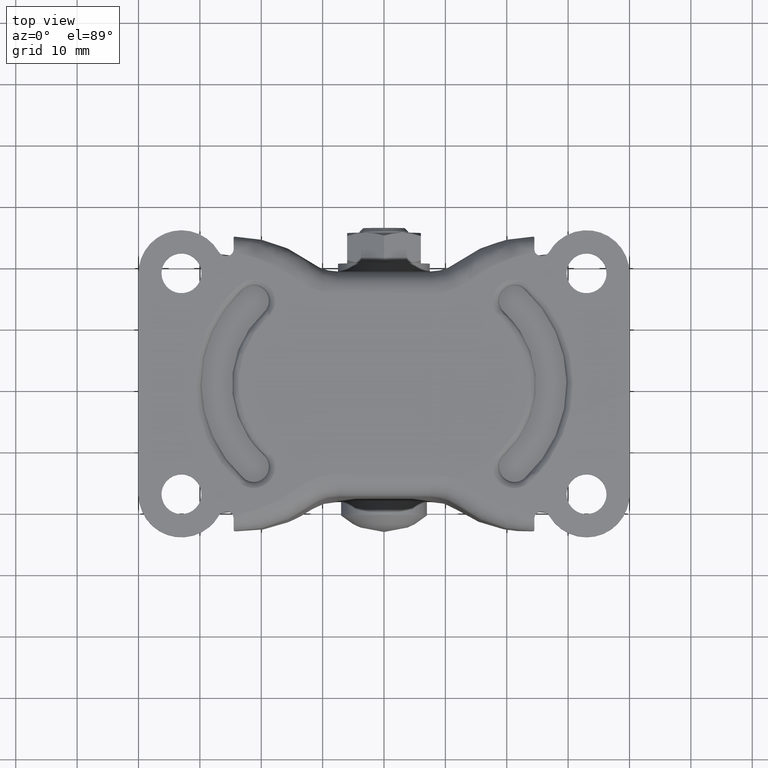
[diagram: clean part render]
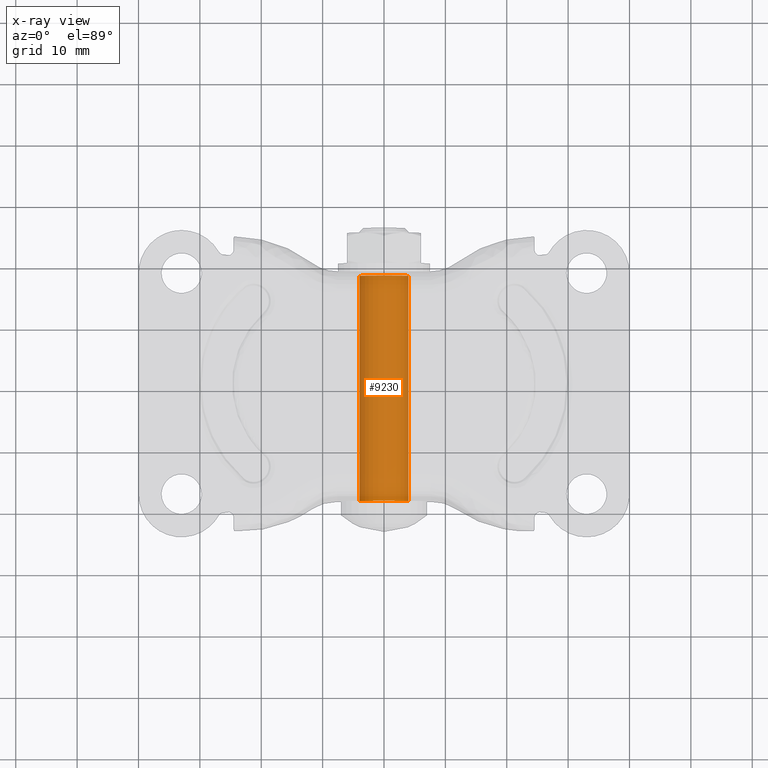
[diagram: x-ray — body ghosted, one internal face saturated and labeled with its STEP entity id]
A machine part, top view, then the same camera in x-ray: the body is ghosted and one INTERNAL B-rep face — a face not visible from any outside direction — is saturated and labeled: STEP entity #9230.
In plain terms, the highlighted face is a freeform B-spline surface patch.
Its self-contained STEP definition (entity closure, byte-faithful):
#9128=CARTESIAN_POINT('',(3.972038105454473,19.267500000000005,-47.472136938627017));
#9129=CARTESIAN_POINT('',(3.985550461794228,19.267500000000009,-47.358458914551903));
#9130=CARTESIAN_POINT('',(3.992539193687272,19.267500000000009,-47.244194158139422));
#9131=CARTESIAN_POINT('',(4.236733351826688,19.267500000000005,-43.251654964452150));
#9132=CARTESIAN_POINT('',(0.244194158139416,19.267500000000009,-43.007460806312729));
#9133=CARTESIAN_POINT('',(-3.748345035547856,19.267500000000005,-42.763266648173321));
#9134=CARTESIAN_POINT('',(-3.992539193687272,19.267500000000009,-46.755805841860592));
#9135=CARTESIAN_POINT('',(3.972038105454473,-19.290437500000007,-47.472136938627017));
#9136=CARTESIAN_POINT('',(3.985550461794228,-19.290437499999999,-47.358458914551903));
#9137=CARTESIAN_POINT('',(3.992539193687272,-19.290437499999999,-47.244194158139422));
#9138=CARTESIAN_POINT('',(4.236733351826688,-19.290437499999999,-43.251654964452150));
#9139=CARTESIAN_POINT('',(0.244194158139416,-19.290437499999999,-43.007460806312729));
#9140=CARTESIAN_POINT('',(-3.748345035547856,-19.290437499999999,-42.763266648173321));
#9141=CARTESIAN_POINT('',(-3.992539193687272,-19.290437499999999,-46.755805841860592));
#9149=(BOUNDED_SURFACE()B_SPLINE_SURFACE(2,1,((#9128,#9135),(#9129,#9136),(#9130,#9137),(#9131,#9138),(#9132,#9139),(#9133,#9140),(#9134,#9141)),.UNSPECIFIED.,.F.,.F.,.U.)B_SPLINE_SURFACE_WITH_KNOTS((3,2,2,3),(2,2),(0.0,0.265096679918768,6.892513677887965,13.519930675857159),(0.0,38.557937500000008),.UNSPECIFIED.)GEOMETRIC_REPRESENTATION_ITEM()RATIONAL_B_SPLINE_SURFACE(((0.977505800795127,0.977505800795127),(0.988284271247462,0.988284271247462),(1.0,1.0),(0.707106781186548,0.707106781186548),(1.0,1.0),(0.707106781186548,0.707106781186548),(1.0,1.0)))REPRESENTATION_ITEM('')SURFACE());
#9150=CARTESIAN_POINT('',(3.972038105450744,-18.350000000000001,-47.472136938658373));
#9151=VERTEX_POINT('',#9150);
#9152=CARTESIAN_POINT('',(0.0,-18.350000000000001,-43.000000000000199));
#9153=VERTEX_POINT('',#9152);
#9154=CARTESIAN_POINT('',(3.972038105450743,-18.350000000000001,-47.472136938658366));
#9155=CARTESIAN_POINT('',(3.999999999999806,-18.349999999999994,-47.236896478639331));
#9156=CARTESIAN_POINT('',(3.999999999999805,-18.350000000000001,-47.0));
#9157=CARTESIAN_POINT('',(3.999999999999806,-18.350000000000001,-43.000000000000206));
#9158=CARTESIAN_POINT('',(0.0,-18.350000000000001,-43.000000000000199));
#9166=(BOUNDED_CURVE()B_SPLINE_CURVE(2,(#9154,#9155,#9156,#9157,#9158),.UNSPECIFIED.,.F.,.U.)B_SPLINE_CURVE_WITH_KNOTS((3,2,3),(0.229562473512975,0.250000000000000,0.500000000000000),.UNSPECIFIED.)CURVE()GEOMETRIC_REPRESENTATION_ITEM()RATIONAL_B_SPLINE_CURVE((0.956026754182654,0.976055948330520,1.0,0.707106781186548,1.0))REPRESENTATION_ITEM(''));
#9167=EDGE_CURVE('',#9151,#9153,#9166,.T.);
#9168=ORIENTED_EDGE('',*,*,#9167,.F.);
#9169=CARTESIAN_POINT('',(3.972038105450744,18.350000000000001,-47.472136938658373));
#9170=VERTEX_POINT('',#9169);
#9171=CARTESIAN_POINT('',(3.972038105450744,18.350000000000001,-47.472136938658373));
#9172=CARTESIAN_POINT('',(3.972038105450744,-18.350000000000001,-47.472136938658373));
#9173=QUASI_UNIFORM_CURVE('',1,(#9171,#9172),.UNSPECIFIED.,.F.,.U.);
#9174=EDGE_CURVE('',#9170,#9151,#9173,.T.);
#9175=ORIENTED_EDGE('',*,*,#9174,.F.);
#9176=CARTESIAN_POINT('',(0.0,18.350000000000001,-43.000000000000199));
#9177=VERTEX_POINT('',#9176);
#9178=CARTESIAN_POINT('',(3.972038105450744,18.350000000000001,-47.472136938658373));
#9179=CARTESIAN_POINT('',(3.999999999999806,18.350000000000005,-47.236896478639331));
#9180=CARTESIAN_POINT('',(3.999999999999805,18.350000000000001,-47.0));
#9181=CARTESIAN_POINT('',(3.999999999999806,18.350000000000001,-43.000000000000206));
#9182=CARTESIAN_POINT('',(0.0,18.350000000000001,-43.000000000000199));
#9190=(BOUNDED_CURVE()B_SPLINE_CURVE(2,(#9178,#9179,#9180,#9181,#9182),.UNSPECIFIED.,.F.,.U.)B_SPLINE_CURVE_WITH_KNOTS((3,2,3),(0.229562473512975,0.250000000000000,0.500000000000000),.UNSPECIFIED.)CURVE()GEOMETRIC_REPRESENTATION_ITEM()RATIONAL_B_SPLINE_CURVE((0.956026754182654,0.976055948330520,1.0,0.707106781186548,1.0))REPRESENTATION_ITEM(''));
#9191=EDGE_CURVE('',#9170,#9177,#9190,.T.);
#9192=ORIENTED_EDGE('',*,*,#9191,.T.);
#9193=CARTESIAN_POINT('',(-3.992539193674548,18.350000000000001,-46.755805841652531));
#9194=VERTEX_POINT('',#9193);
#9195=CARTESIAN_POINT('',(0.0,18.350000000000001,-43.000000000000199));
#9196=CARTESIAN_POINT('',(-3.762824267229712,18.349999999999998,-43.000000000000199));
#9197=CARTESIAN_POINT('',(-3.992539193674548,18.350000000000001,-46.755805841652531));
#9205=(BOUNDED_CURVE()B_SPLINE_CURVE(2,(#9195,#9196,#9197),.UNSPECIFIED.,.F.,.U.)B_SPLINE_CURVE_WITH_KNOTS((3,3),(0.500000000000000,0.739332962223986),.UNSPECIFIED.)CURVE()GEOMETRIC_REPRESENTATION_ITEM()RATIONAL_B_SPLINE_CURVE((1.0,0.719603993304233,0.976072041634662))REPRESENTATION_ITEM(''));
#9206=EDGE_CURVE('',#9177,#9194,#9205,.T.);
#9207=ORIENTED_EDGE('',*,*,#9206,.T.);
#9208=CARTESIAN_POINT('',(-3.992539193674547,-18.350000000000001,-46.755805841652531));
#9209=VERTEX_POINT('',#9208);
#9210=CARTESIAN_POINT('',(-3.992539193674548,18.350000000000001,-46.755805841652531));
#9211=CARTESIAN_POINT('',(-3.992539193674547,-18.350000000000001,-46.755805841652531));
#9212=QUASI_UNIFORM_CURVE('',1,(#9210,#9211),.UNSPECIFIED.,.F.,.U.);
#9213=EDGE_CURVE('',#9194,#9209,#9212,.T.);
#9214=ORIENTED_EDGE('',*,*,#9213,.T.);
#9215=CARTESIAN_POINT('',(0.0,-18.350000000000001,-43.000000000000199));
#9216=CARTESIAN_POINT('',(-3.762824267229712,-18.349999999999998,-43.000000000000199));
#9217=CARTESIAN_POINT('',(-3.992539193674548,-18.350000000000001,-46.755805841652531));
#9225=(BOUNDED_CURVE()B_SPLINE_CURVE(2,(#9215,#9216,#9217),.UNSPECIFIED.,.F.,.U.)B_SPLINE_CURVE_WITH_KNOTS((3,3),(0.500000000000000,0.739332962223986),.UNSPECIFIED.)CURVE()GEOMETRIC_REPRESENTATION_ITEM()RATIONAL_B_SPLINE_CURVE((1.0,0.719603993304233,0.976072041634662))REPRESENTATION_ITEM(''));
#9226=EDGE_CURVE('',#9153,#9209,#9225,.T.);
#9227=ORIENTED_EDGE('',*,*,#9226,.F.);
#9228=EDGE_LOOP('',(#9168,#9175,#9192,#9207,#9214,#9227));
#9229=FACE_OUTER_BOUND('',#9228,.T.);
#9230=ADVANCED_FACE('',(#9229),#9149,.T.);